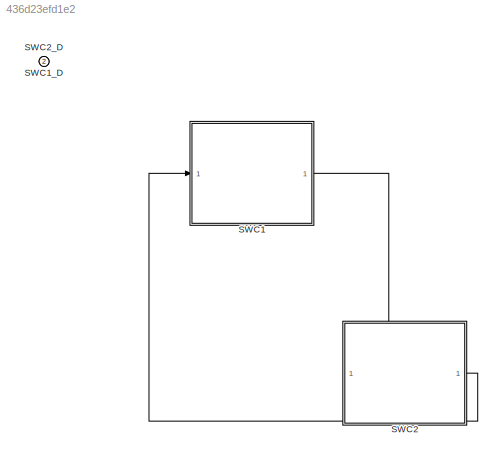
MODEL slx_436d23efd1e2
KIND model
CONFIG AbsTol = auto
CONFIG EnableMultiTasking = off
CONFIG FixedStep = auto
CONFIG MaxStep = auto
CONFIG MinStep = auto
CONFIG RelTol = 1e-3
CONFIG SampleTimeConstraint = Unconstrained
CONFIG SolverName = FixedStepDiscrete
CONFIG StartTime = 0.0
CONFIG StopTime = 10.0
BLOCK [ModelReference] SWC1
  ModelEventPortInfo = P:D1[-2][0][0]
  ModelNameDialog = SWC1
  ModelReferenceVersion = 1.3
  PortSchema = {"entries":[{"content":{"headerSize":38,"margin":15,"minimumSpacing":25,"sides":[{"content":{"connectorIds":["In1"]},"type":"ConnectorPlacement.EquallySpacedRectSide","uuid":"91546a1a-7e68-4d66-af63-2b5762a49f9e"},{"content":{"connectorIds":["Out1"],"side":"RIGHT"},"type":"ConnectorPlacement.EquallySpacedRectSide","uuid":"6b5a4ba3-3cdb-4593-b9ac-d8460c5504de"},{"content":{"connectorIds":[],"side":...<+437ch>
  ScheduleRates = on
BLOCK [Inport] SWC1_D
  OutputFunctionCall = on
BLOCK [ModelReference] SWC2
  ModelEventPortInfo = P:D1[-2][0][0]
  ModelNameDialog = SWC2
  ModelReferenceVersion = 1.3
  PortSchema = {"entries":[{"content":{"headerSize":38,"margin":15,"minimumSpacing":25,"sides":[{"content":{"connectorIds":[]},"type":"ConnectorPlacement.EquallySpacedRectSide","uuid":"91546a1a-7e68-4d66-af63-2b5762a49f9e"},{"content":{"connectorIds":["Out1"],"side":"RIGHT"},"type":"ConnectorPlacement.EquallySpacedRectSide","uuid":"6b5a4ba3-3cdb-4593-b9ac-d8460c5504de"},{"content":{"connectorIds":["In1"],"side":...<+437ch>
  ScheduleRates = on
BLOCK [Inport] SWC2_D
  OutputFunctionCall = on
  Port = 2
LINE SWC1:1 -> SWC2:1
LINE SWC2:1 -> SWC1:1
